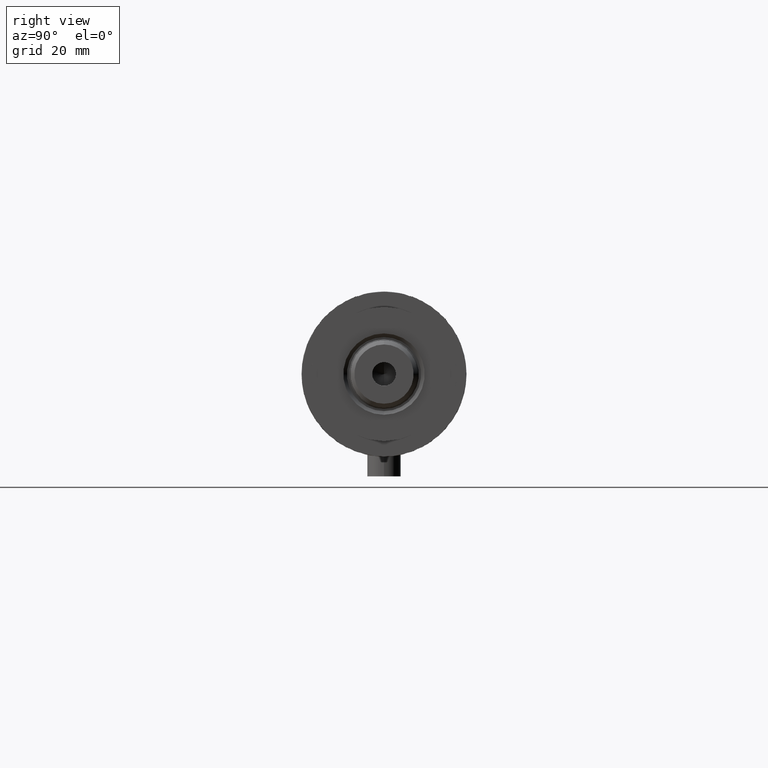
[diagram: clean part render]
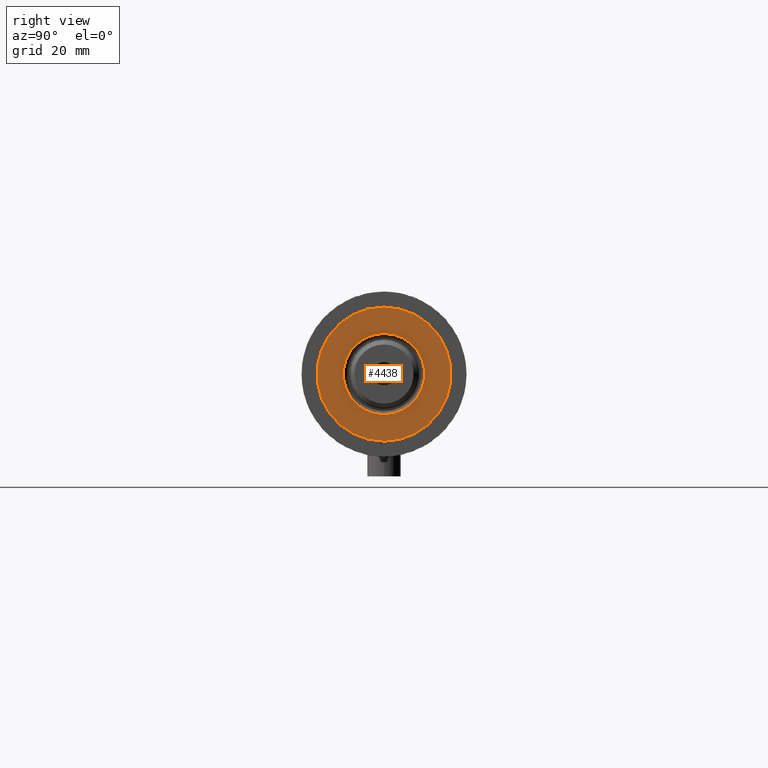
[diagram: same view with one face highlighted and labeled with its STEP entity id]
A machine part, right view. The second image highlights one B-rep face of the part: STEP entity #4438.
In plain terms, the highlighted planar face has unit normal (1, 0, -0).
Its self-contained STEP definition (entity closure, byte-faithful):
#24 = DIRECTION ( 'NONE',  ( 0.000000000000000000, 0.000000000000000000, 1.000000000000000000 ) ) ;
#130 = CARTESIAN_POINT ( 'NONE',  ( 24.00000000000000355, 2.939152317953648289E-15, 41.00000000000000000 ) ) ;
#202 = CARTESIAN_POINT ( 'NONE',  ( 14.54999999999997939, 0.000000000000000000, 41.00000000000000000 ) ) ;
#316 = EDGE_CURVE ( 'NONE', #798, #2174, #2469, .T. ) ;
#343 = EDGE_CURVE ( 'NONE', #514, #1642, #3033, .T. ) ;
#514 = VERTEX_POINT ( 'NONE', #202 ) ;
#554 = AXIS2_PLACEMENT_3D ( 'NONE', #2381, #3662, #3684 ) ;
#798 = VERTEX_POINT ( 'NONE', #130 ) ;
#986 = PLANE ( 'NONE',  #554 ) ;
#1344 = FACE_OUTER_BOUND ( 'NONE', #2792, .T. ) ;
#1466 = DIRECTION ( 'NONE',  ( 1.000000000000000000, 0.000000000000000000, 0.000000000000000000 ) ) ;
#1497 = DIRECTION ( 'NONE',  ( -0.000000000000000000, -0.000000000000000000, -1.000000000000000000 ) ) ;
#1500 = CIRCLE ( 'NONE', #1716, 24.00000000000000355 ) ;
#1642 = VERTEX_POINT ( 'NONE', #1646 ) ;
#1646 = CARTESIAN_POINT ( 'NONE',  ( -14.54999999999997939, 1.781861092759396721E-15, 41.00000000000000000 ) ) ;
#1716 = AXIS2_PLACEMENT_3D ( 'NONE', #3580, #2280, #2960 ) ;
#1826 = DIRECTION ( 'NONE',  ( 1.000000000000000000, 0.000000000000000000, 0.000000000000000000 ) ) ;
#2129 = ORIENTED_EDGE ( 'NONE', *, *, #4128, .T. ) ;
#2174 = VERTEX_POINT ( 'NONE', #2392 ) ;
#2280 = DIRECTION ( 'NONE',  ( 0.000000000000000000, 0.000000000000000000, 1.000000000000000000 ) ) ;
#2329 = AXIS2_PLACEMENT_3D ( 'NONE', #4232, #1497, #1826 ) ;
#2381 = CARTESIAN_POINT ( 'NONE',  ( 0.000000000000000000, 0.000000000000000000, 41.00000000000000000 ) ) ;
#2392 = CARTESIAN_POINT ( 'NONE',  ( -24.00000000000000355, 0.000000000000000000, 41.00000000000000000 ) ) ;
#2469 = CIRCLE ( 'NONE', #2821, 24.00000000000000355 ) ;
#2546 = CARTESIAN_POINT ( 'NONE',  ( 0.000000000000000000, 0.000000000000000000, 41.00000000000000000 ) ) ;
#2792 = EDGE_LOOP ( 'NONE', ( #2129, #3262 ) ) ;
#2801 = ORIENTED_EDGE ( 'NONE', *, *, #3670, .T. ) ;
#2821 = AXIS2_PLACEMENT_3D ( 'NONE', #2546, #24, #1466 ) ;
#2882 = EDGE_LOOP ( 'NONE', ( #3181, #2801 ) ) ;
#2906 = CARTESIAN_POINT ( 'NONE',  ( 0.000000000000000000, 0.000000000000000000, 41.00000000000000000 ) ) ;
#2960 = DIRECTION ( 'NONE',  ( 1.000000000000000000, 0.000000000000000000, 0.000000000000000000 ) ) ;
#3033 = CIRCLE ( 'NONE', #2329, 14.54999999999997939 ) ;
#3130 = AXIS2_PLACEMENT_3D ( 'NONE', #2906, #3944, #3263 ) ;
#3181 = ORIENTED_EDGE ( 'NONE', *, *, #343, .T. ) ;
#3262 = ORIENTED_EDGE ( 'NONE', *, *, #316, .T. ) ;
#3263 = DIRECTION ( 'NONE',  ( 1.000000000000000000, 0.000000000000000000, 0.000000000000000000 ) ) ;
#3580 = CARTESIAN_POINT ( 'NONE',  ( 0.000000000000000000, 0.000000000000000000, 41.00000000000000000 ) ) ;
#3662 = DIRECTION ( 'NONE',  ( 0.000000000000000000, 0.000000000000000000, 1.000000000000000000 ) ) ;
#3670 = EDGE_CURVE ( 'NONE', #1642, #514, #4362, .T. ) ;
#3684 = DIRECTION ( 'NONE',  ( 1.000000000000000000, 0.000000000000000000, -0.000000000000000000 ) ) ;
#3944 = DIRECTION ( 'NONE',  ( -0.000000000000000000, -0.000000000000000000, -1.000000000000000000 ) ) ;
#4128 = EDGE_CURVE ( 'NONE', #2174, #798, #1500, .T. ) ;
#4232 = CARTESIAN_POINT ( 'NONE',  ( 0.000000000000000000, 0.000000000000000000, 41.00000000000000000 ) ) ;
#4362 = CIRCLE ( 'NONE', #3130, 14.54999999999997939 ) ;
#4422 = FACE_BOUND ( 'NONE', #2882, .T. ) ;
#4438 = ADVANCED_FACE ( 'NONE', ( #4422, #1344 ), #986, .T. ) ;